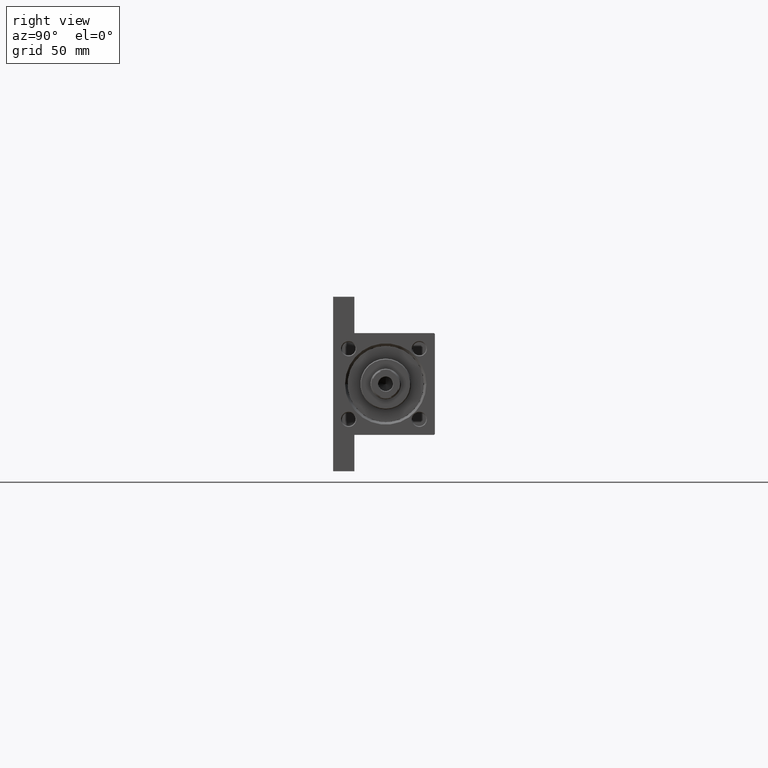
[diagram: clean part render]
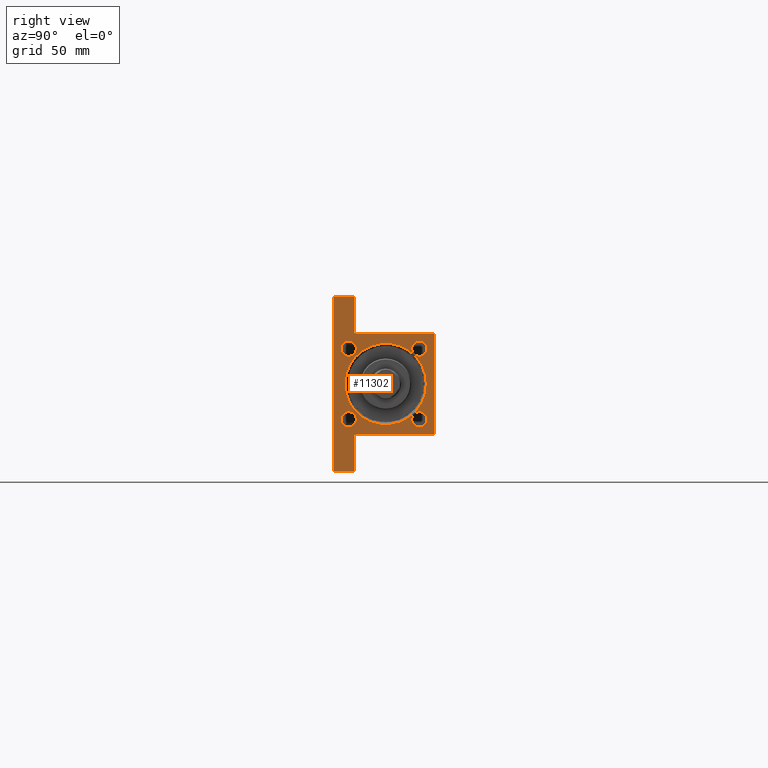
[diagram: same view with one face highlighted and labeled with its STEP entity id]
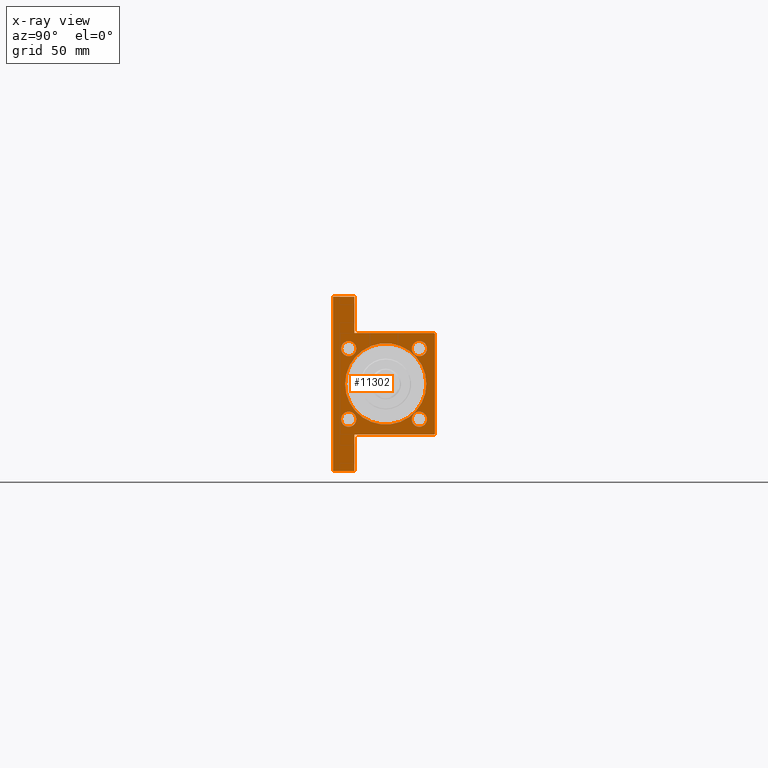
[diagram: x-ray of the same camera — body ghosted, the highlighted face saturated]
A machine part, right view. The second image highlights one B-rep face of the part: STEP entity #11302.
The next image is the same camera in x-ray: the body ghosted, the highlighted face saturated — about 0% of this face is hidden behind the body in this view.
In plain terms, the highlighted planar face has unit normal (-1, 0, -0).
Its self-contained STEP definition (entity closure, byte-faithful):
#266 = CIRCLE ( 'NONE', #38938, 24.00000000000002487 ) ;
#361 = AXIS2_PLACEMENT_3D ( 'NONE', #44065, #44787, #10765 ) ;
#494 = DIRECTION ( 'NONE',  ( 0.000000000000000000, -1.000000000000000000, -1.156482317317871478E-16 ) ) ;
#807 = CARTESIAN_POINT ( 'NONE',  ( 377.9999999999999432, 30.00000000000000000, 29.49999999999994316 ) ) ;
#884 = AXIS2_PLACEMENT_3D ( 'NONE', #17624, #11615, #7683 ) ;
#1010 = CARTESIAN_POINT ( 'NONE',  ( 378.0000000000000000, 51.49999999999996447, -29.99999999999999645 ) ) ;
#1233 = CARTESIAN_POINT ( 'NONE',  ( 377.9999999999999432, 2.939152317953650655E-15, 25.00000000000003197 ) ) ;
#1431 = DIRECTION ( 'NONE',  ( 0.000000000000000000, 0.000000000000000000, 1.000000000000000000 ) ) ;
#2199 = VERTEX_POINT ( 'NONE', #27503 ) ;
#2570 = ORIENTED_EDGE ( 'NONE', *, *, #10382, .T. ) ;
#2861 = AXIS2_PLACEMENT_3D ( 'NONE', #20751, #37490, #7162 ) ;
#2995 = CARTESIAN_POINT ( 'NONE',  ( 377.9999999999999432, 30.00000000000000000, 30.00000000000000000 ) ) ;
#3241 = CIRCLE ( 'NONE', #884, 4.500000000000059508 ) ;
#3626 = CARTESIAN_POINT ( 'NONE',  ( 377.9999999999999432, 0.000000000000000000, 0.000000000000000000 ) ) ;
#3691 = VECTOR ( 'NONE', #40943, 1000.000000000000000 ) ;
#3935 = EDGE_LOOP ( 'NONE', ( #35868, #30193 ) ) ;
#4092 = CARTESIAN_POINT ( 'NONE',  ( 377.9999999999999432, -29.50000000000000000, 29.99999999999999289 ) ) ;
#4263 = ORIENTED_EDGE ( 'NONE', *, *, #6016, .T. ) ;
#4565 = DIRECTION ( 'NONE',  ( -1.000000000000000000, 0.000000000000000000, -0.000000000000000000 ) ) ;
#5105 = AXIS2_PLACEMENT_3D ( 'NONE', #31982, #35189, #1431 ) ;
#5164 = VERTEX_POINT ( 'NONE', #44434 ) ;
#5757 = DIRECTION ( 'NONE',  ( -1.000000000000000000, 0.000000000000000000, -0.000000000000000000 ) ) ;
#5846 = DIRECTION ( 'NONE',  ( -1.000000000000000000, 0.000000000000000000, -0.000000000000000000 ) ) ;
#6008 = DIRECTION ( 'NONE',  ( 0.000000000000000000, 0.000000000000000000, 1.000000000000000000 ) ) ;
#6016 = EDGE_CURVE ( 'NONE', #31114, #27910, #266, .T. ) ;
#6051 = CARTESIAN_POINT ( 'NONE',  ( 377.9999999999999432, -51.50000000000002842, -17.49999999999999645 ) ) ;
#6060 = DIRECTION ( 'NONE',  ( 0.000000000000000000, 0.000000000000000000, 1.000000000000000000 ) ) ;
#6432 = CARTESIAN_POINT ( 'NONE',  ( 377.9999999999999432, 29.99999999999993605, -17.49999999999999645 ) ) ;
#6480 = ORIENTED_EDGE ( 'NONE', *, *, #45252, .T. ) ;
#6496 = AXIS2_PLACEMENT_3D ( 'NONE', #44258, #7523, #10722 ) ;
#6831 = CARTESIAN_POINT ( 'NONE',  ( 377.9999999999999432, 20.84999999999999787, 25.35000000000005826 ) ) ;
#7067 = EDGE_CURVE ( 'NONE', #41271, #5164, #36848, .T. ) ;
#7162 = DIRECTION ( 'NONE',  ( 0.000000000000000000, 0.000000000000000000, 1.000000000000000000 ) ) ;
#7463 = EDGE_LOOP ( 'NONE', ( #35104, #39970 ) ) ;
#7523 = DIRECTION ( 'NONE',  ( -1.000000000000000000, 0.000000000000000000, -0.000000000000000000 ) ) ;
#7548 = DIRECTION ( 'NONE',  ( 0.000000000000000000, 0.000000000000000000, 1.000000000000000000 ) ) ;
#7683 = DIRECTION ( 'NONE',  ( 0.000000000000000000, 0.000000000000000000, 1.000000000000000000 ) ) ;
#8762 = CARTESIAN_POINT ( 'NONE',  ( 377.9999999999999432, 29.49999999999994316, 30.00000000000000000 ) ) ;
#9090 = VECTOR ( 'NONE', #18707, 1000.000000000000000 ) ;
#10130 = EDGE_CURVE ( 'NONE', #11467, #24736, #41886, .T. ) ;
#10382 = EDGE_CURVE ( 'NONE', #24736, #41271, #36912, .T. ) ;
#10430 = VERTEX_POINT ( 'NONE', #4092 ) ;
#10586 = LINE ( 'NONE', #37208, #9090 ) ;
#10722 = DIRECTION ( 'NONE',  ( 0.000000000000000000, 0.000000000000000000, 1.000000000000000000 ) ) ;
#10765 = DIRECTION ( 'NONE',  ( 0.000000000000000000, 0.000000000000000000, 1.000000000000000000 ) ) ;
#11302 = ADVANCED_FACE ( 'NONE', ( #15689, #30720, #37403, #12228, #27272, #42323 ), #22358, .F. ) ;
#11467 = VERTEX_POINT ( 'NONE', #39579 ) ;
#11615 = DIRECTION ( 'NONE',  ( -1.000000000000000000, 0.000000000000000000, -0.000000000000000000 ) ) ;
#11753 = ORIENTED_EDGE ( 'NONE', *, *, #13998, .F. ) ;
#12228 = FACE_BOUND ( 'NONE', #7463, .T. ) ;
#12335 = ORIENTED_EDGE ( 'NONE', *, *, #40831, .F. ) ;
#12400 = VERTEX_POINT ( 'NONE', #6831 ) ;
#12601 = EDGE_LOOP ( 'NONE', ( #17334, #24553 ) ) ;
#12744 = EDGE_CURVE ( 'NONE', #2199, #12400, #3241, .T. ) ;
#13998 = EDGE_CURVE ( 'NONE', #18612, #29925, #21395, .T. ) ;
#14297 = EDGE_CURVE ( 'NONE', #12400, #2199, #42708, .T. ) ;
#14686 = CARTESIAN_POINT ( 'NONE',  ( 377.9999999999999432, -51.50000000000002842, -17.49999999999999645 ) ) ;
#15433 = CARTESIAN_POINT ( 'NONE',  ( 377.9999999999999432, -20.85000000000000142, -16.34999999999994102 ) ) ;
#15652 = EDGE_CURVE ( 'NONE', #26393, #19441, #35549, .T. ) ;
#15689 = FACE_BOUND ( 'NONE', #12601, .T. ) ;
#15778 = LINE ( 'NONE', #19480, #35723 ) ;
#16930 = ORIENTED_EDGE ( 'NONE', *, *, #27861, .T. ) ;
#17053 = CARTESIAN_POINT ( 'NONE',  ( 377.9999999999999432, -20.84999999999999432, 25.35000000000005826 ) ) ;
#17173 = VERTEX_POINT ( 'NONE', #6432 ) ;
#17281 = ORIENTED_EDGE ( 'NONE', *, *, #28724, .T. ) ;
#17334 = ORIENTED_EDGE ( 'NONE', *, *, #12744, .T. ) ;
#17341 = ORIENTED_EDGE ( 'NONE', *, *, #42760, .T. ) ;
#17373 = DIRECTION ( 'NONE',  ( 0.000000000000000000, 0.000000000000000000, -1.000000000000000000 ) ) ;
#17624 = CARTESIAN_POINT ( 'NONE',  ( 377.9999999999999432, 20.84999999999999787, 20.85000000000000142 ) ) ;
#18121 = DIRECTION ( 'NONE',  ( 0.000000000000000000, 0.000000000000000000, 1.000000000000000000 ) ) ;
#18389 = CARTESIAN_POINT ( 'NONE',  ( 377.9999999999999432, -30.00000000000000000, -17.49999999999998224 ) ) ;
#18593 = EDGE_CURVE ( 'NONE', #19441, #26393, #27926, .T. ) ;
#18612 = VERTEX_POINT ( 'NONE', #46517 ) ;
#18653 = DIRECTION ( 'NONE',  ( -1.000000000000000000, 0.000000000000000000, -0.000000000000000000 ) ) ;
#18707 = DIRECTION ( 'NONE',  ( -2.581914010756175093E-15, -1.000000000000000000, 0.000000000000000000 ) ) ;
#19441 = VERTEX_POINT ( 'NONE', #15433 ) ;
#19480 = CARTESIAN_POINT ( 'NONE',  ( 377.9999999999999432, 30.00000000000000000, 30.00000000000000000 ) ) ;
#20751 = CARTESIAN_POINT ( 'NONE',  ( 377.9999999999999432, -20.84999999999999432, 20.85000000000000142 ) ) ;
#20920 = VERTEX_POINT ( 'NONE', #31952 ) ;
#21029 = ORIENTED_EDGE ( 'NONE', *, *, #18593, .T. ) ;
#21395 = LINE ( 'NONE', #42441, #22170 ) ;
#22060 = VECTOR ( 'NONE', #47765, 1000.000000000000000 ) ;
#22170 = VECTOR ( 'NONE', #47538, 1000.000000000000000 ) ;
#22358 = PLANE ( 'NONE',  #33116 ) ;
#22420 = CIRCLE ( 'NONE', #361, 24.00000000000002487 ) ;
#23646 = VECTOR ( 'NONE', #42137, 1000.000000000000000 ) ;
#24013 = ORIENTED_EDGE ( 'NONE', *, *, #7067, .T. ) ;
#24478 = ORIENTED_EDGE ( 'NONE', *, *, #48045, .T. ) ;
#24553 = ORIENTED_EDGE ( 'NONE', *, *, #14297, .T. ) ;
#24736 = VERTEX_POINT ( 'NONE', #18389 ) ;
#25164 = VECTOR ( 'NONE', #29158, 1000.000000000000114 ) ;
#25191 = VECTOR ( 'NONE', #26217, 1000.000000000000000 ) ;
#26125 = LINE ( 'NONE', #41666, #39055 ) ;
#26217 = DIRECTION ( 'NONE',  ( -0.000000000000000000, -0.7071067811865868746, -0.7071067811865081598 ) ) ;
#26302 = DIRECTION ( 'NONE',  ( -0.000000000000000000, 0.000000000000000000, 1.000000000000000000 ) ) ;
#26393 = VERTEX_POINT ( 'NONE', #45522 ) ;
#26892 = AXIS2_PLACEMENT_3D ( 'NONE', #35385, #28475, #6060 ) ;
#27082 = CARTESIAN_POINT ( 'NONE',  ( 377.9999999999999432, -30.00000000000000000, 29.99999999999999289 ) ) ;
#27180 = CARTESIAN_POINT ( 'NONE',  ( 377.9999999999999432, -20.84999999999999432, 16.34999999999994102 ) ) ;
#27272 = FACE_BOUND ( 'NONE', #44870, .T. ) ;
#27503 = CARTESIAN_POINT ( 'NONE',  ( 377.9999999999999432, 20.84999999999999787, 16.34999999999994102 ) ) ;
#27861 = EDGE_CURVE ( 'NONE', #41751, #29349, #40511, .T. ) ;
#27910 = VERTEX_POINT ( 'NONE', #1233 ) ;
#27926 = CIRCLE ( 'NONE', #5105, 4.500000000000059508 ) ;
#28061 = EDGE_LOOP ( 'NONE', ( #12335, #16930, #24478, #17281, #32593, #2570, #24013, #39298, #11753, #6480 ) ) ;
#28475 = DIRECTION ( 'NONE',  ( -1.000000000000000000, 0.000000000000000000, -0.000000000000000000 ) ) ;
#28576 = CIRCLE ( 'NONE', #30969, 4.500000000000059508 ) ;
#28724 = EDGE_CURVE ( 'NONE', #10430, #11467, #37068, .T. ) ;
#29104 = CARTESIAN_POINT ( 'NONE',  ( 377.9999999999999432, 20.84999999999999787, -20.85000000000000142 ) ) ;
#29158 = DIRECTION ( 'NONE',  ( 0.000000000000000000, -0.7071067811865474617, 0.7071067811865474617 ) ) ;
#29307 = VECTOR ( 'NONE', #17373, 1000.000000000000000 ) ;
#29349 = VERTEX_POINT ( 'NONE', #8762 ) ;
#29925 = VERTEX_POINT ( 'NONE', #1010 ) ;
#30193 = ORIENTED_EDGE ( 'NONE', *, *, #47027, .T. ) ;
#30565 = ORIENTED_EDGE ( 'NONE', *, *, #15652, .T. ) ;
#30720 = FACE_BOUND ( 'NONE', #3935, .T. ) ;
#30969 = AXIS2_PLACEMENT_3D ( 'NONE', #29104, #36765, #33539 ) ;
#31114 = VERTEX_POINT ( 'NONE', #36458 ) ;
#31952 = CARTESIAN_POINT ( 'NONE',  ( 377.9999999999999432, 20.84999999999999787, -25.35000000000005826 ) ) ;
#31982 = CARTESIAN_POINT ( 'NONE',  ( 377.9999999999999432, -20.85000000000000142, -20.85000000000000142 ) ) ;
#32476 = EDGE_CURVE ( 'NONE', #36195, #20920, #47400, .T. ) ;
#32593 = ORIENTED_EDGE ( 'NONE', *, *, #10130, .T. ) ;
#33116 = AXIS2_PLACEMENT_3D ( 'NONE', #3626, #18653, #26302 ) ;
#33539 = DIRECTION ( 'NONE',  ( 0.000000000000000000, 0.000000000000000000, 1.000000000000000000 ) ) ;
#33778 = EDGE_CURVE ( 'NONE', #35659, #37307, #47435, .T. ) ;
#34001 = AXIS2_PLACEMENT_3D ( 'NONE', #44278, #5846, #18121 ) ;
#34463 = CARTESIAN_POINT ( 'NONE',  ( 377.9999999999999432, 20.84999999999999787, -16.34999999999994102 ) ) ;
#35104 = ORIENTED_EDGE ( 'NONE', *, *, #39861, .T. ) ;
#35189 = DIRECTION ( 'NONE',  ( -1.000000000000000000, 0.000000000000000000, -0.000000000000000000 ) ) ;
#35385 = CARTESIAN_POINT ( 'NONE',  ( 377.9999999999999432, -20.85000000000000142, -20.85000000000000142 ) ) ;
#35549 = CIRCLE ( 'NONE', #26892, 4.500000000000059508 ) ;
#35659 = VERTEX_POINT ( 'NONE', #27180 ) ;
#35723 = VECTOR ( 'NONE', #42648, 1000.000000000000000 ) ;
#35868 = ORIENTED_EDGE ( 'NONE', *, *, #33778, .T. ) ;
#35927 = CIRCLE ( 'NONE', #2861, 4.500000000000059508 ) ;
#36195 = VERTEX_POINT ( 'NONE', #34463 ) ;
#36431 = CARTESIAN_POINT ( 'NONE',  ( 377.9999999999999432, -51.50000000000002842, -17.49999999999999645 ) ) ;
#36458 = CARTESIAN_POINT ( 'NONE',  ( 377.9999999999999432, 0.000000000000000000, -23.00000000000001776 ) ) ;
#36765 = DIRECTION ( 'NONE',  ( -1.000000000000000000, 0.000000000000000000, -0.000000000000000000 ) ) ;
#36848 = LINE ( 'NONE', #6051, #29307 ) ;
#36912 = LINE ( 'NONE', #36431, #22060 ) ;
#37068 = LINE ( 'NONE', #45444, #25191 ) ;
#37208 = CARTESIAN_POINT ( 'NONE',  ( 378.0000000000000000, 51.49999999999996447, -17.49999999999999645 ) ) ;
#37307 = VERTEX_POINT ( 'NONE', #17053 ) ;
#37403 = FACE_BOUND ( 'NONE', #46551, .T. ) ;
#37490 = DIRECTION ( 'NONE',  ( -1.000000000000000000, 0.000000000000000000, -0.000000000000000000 ) ) ;
#37981 = AXIS2_PLACEMENT_3D ( 'NONE', #44773, #4565, #7548 ) ;
#38938 = AXIS2_PLACEMENT_3D ( 'NONE', #44198, #5757, #6008 ) ;
#39055 = VECTOR ( 'NONE', #494, 1000.000000000000000 ) ;
#39298 = ORIENTED_EDGE ( 'NONE', *, *, #45956, .F. ) ;
#39579 = CARTESIAN_POINT ( 'NONE',  ( 377.9999999999999432, -30.00000000000000000, 29.50000000000004619 ) ) ;
#39861 = EDGE_CURVE ( 'NONE', #20920, #36195, #28576, .T. ) ;
#39970 = ORIENTED_EDGE ( 'NONE', *, *, #32476, .T. ) ;
#40511 = LINE ( 'NONE', #47900, #25164 ) ;
#40831 = EDGE_CURVE ( 'NONE', #41751, #17173, #15778, .T. ) ;
#40943 = DIRECTION ( 'NONE',  ( 0.000000000000000000, -1.000000000000000000, -1.156482317317871478E-16 ) ) ;
#41198 = LINE ( 'NONE', #2995, #3691 ) ;
#41271 = VERTEX_POINT ( 'NONE', #14686 ) ;
#41666 = CARTESIAN_POINT ( 'NONE',  ( 377.9999999999999432, 30.00000000000000000, -29.99999999999999289 ) ) ;
#41751 = VERTEX_POINT ( 'NONE', #807 ) ;
#41886 = LINE ( 'NONE', #27082, #23646 ) ;
#42137 = DIRECTION ( 'NONE',  ( 0.000000000000000000, 0.000000000000000000, -1.000000000000000000 ) ) ;
#42323 = FACE_OUTER_BOUND ( 'NONE', #28061, .T. ) ;
#42441 = CARTESIAN_POINT ( 'NONE',  ( 378.0000000000000000, 51.49999999999996447, -17.49999999999999645 ) ) ;
#42648 = DIRECTION ( 'NONE',  ( 0.000000000000000000, 0.000000000000000000, -1.000000000000000000 ) ) ;
#42708 = CIRCLE ( 'NONE', #6496, 4.500000000000059508 ) ;
#42760 = EDGE_CURVE ( 'NONE', #27910, #31114, #22420, .T. ) ;
#44065 = CARTESIAN_POINT ( 'NONE',  ( 377.9999999999999432, 0.000000000000000000, 1.000000000000007772 ) ) ;
#44198 = CARTESIAN_POINT ( 'NONE',  ( 377.9999999999999432, 0.000000000000000000, 1.000000000000007772 ) ) ;
#44258 = CARTESIAN_POINT ( 'NONE',  ( 377.9999999999999432, 20.84999999999999787, 20.85000000000000142 ) ) ;
#44278 = CARTESIAN_POINT ( 'NONE',  ( 377.9999999999999432, 20.84999999999999787, -20.85000000000000142 ) ) ;
#44434 = CARTESIAN_POINT ( 'NONE',  ( 377.9999999999999432, -51.50000000000002842, -29.99999999999999645 ) ) ;
#44773 = CARTESIAN_POINT ( 'NONE',  ( 377.9999999999999432, -20.84999999999999432, 20.85000000000000142 ) ) ;
#44787 = DIRECTION ( 'NONE',  ( -1.000000000000000000, 0.000000000000000000, -0.000000000000000000 ) ) ;
#44870 = EDGE_LOOP ( 'NONE', ( #4263, #17341 ) ) ;
#45252 = EDGE_CURVE ( 'NONE', #18612, #17173, #10586, .T. ) ;
#45444 = CARTESIAN_POINT ( 'NONE',  ( 377.9999999999999432, -30.00000000000000000, 29.50000000000004619 ) ) ;
#45522 = CARTESIAN_POINT ( 'NONE',  ( 377.9999999999999432, -20.85000000000000142, -25.35000000000005826 ) ) ;
#45956 = EDGE_CURVE ( 'NONE', #29925, #5164, #26125, .T. ) ;
#46517 = CARTESIAN_POINT ( 'NONE',  ( 378.0000000000000000, 51.49999999999996447, -17.49999999999999645 ) ) ;
#46551 = EDGE_LOOP ( 'NONE', ( #30565, #21029 ) ) ;
#47027 = EDGE_CURVE ( 'NONE', #37307, #35659, #35927, .T. ) ;
#47400 = CIRCLE ( 'NONE', #34001, 4.500000000000059508 ) ;
#47435 = CIRCLE ( 'NONE', #37981, 4.500000000000059508 ) ;
#47538 = DIRECTION ( 'NONE',  ( 0.000000000000000000, 0.000000000000000000, -1.000000000000000000 ) ) ;
#47765 = DIRECTION ( 'NONE',  ( -0.000000000000000000, -1.000000000000000000, -0.000000000000000000 ) ) ;
#47900 = CARTESIAN_POINT ( 'NONE',  ( 377.9999999999999432, 29.49999999999994316, 30.00000000000000000 ) ) ;
#48045 = EDGE_CURVE ( 'NONE', #29349, #10430, #41198, .T. ) ;